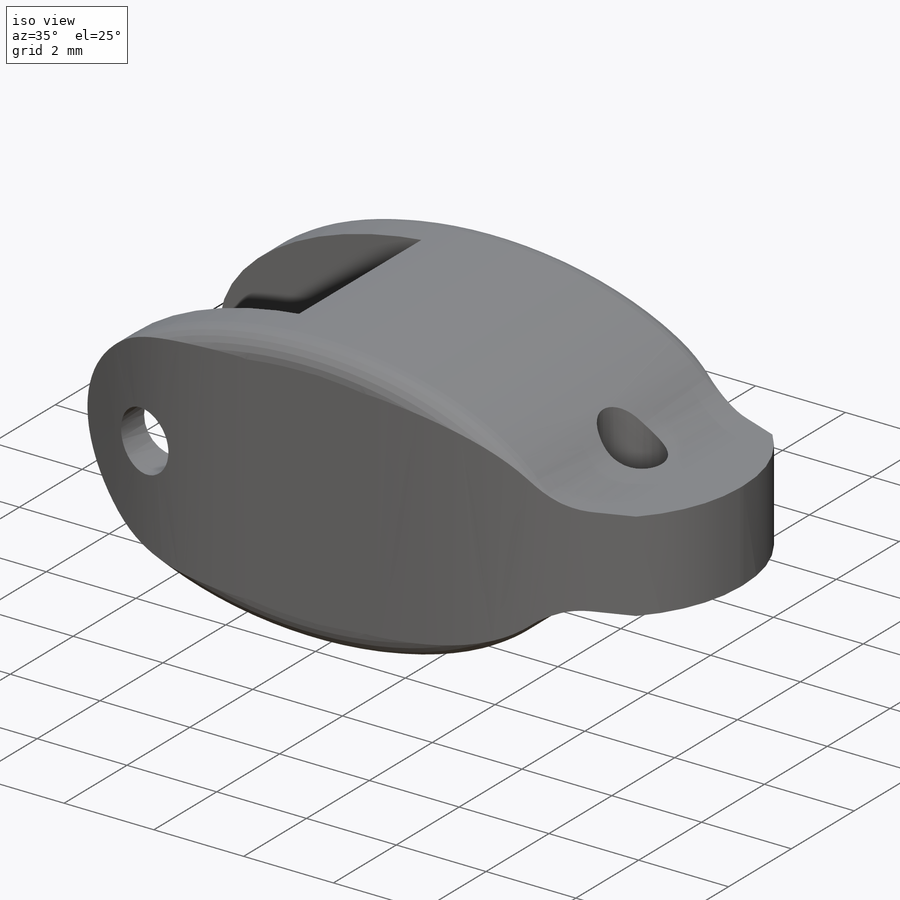
[diagram: iso view]
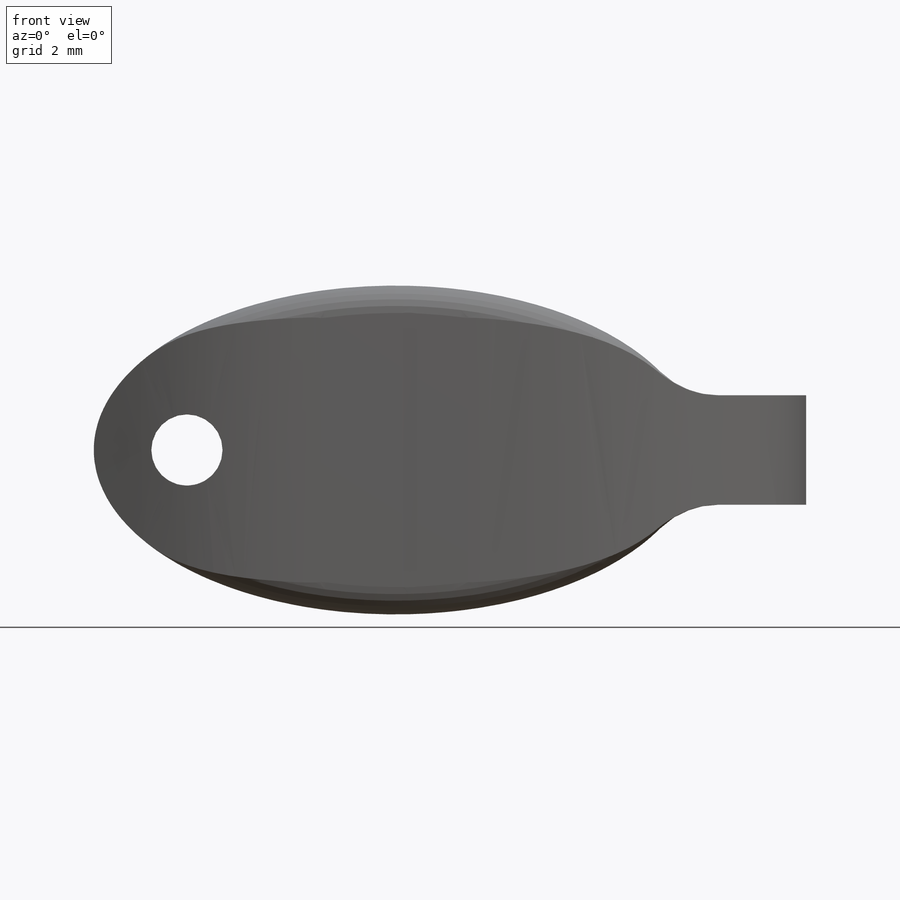
[diagram: front view]
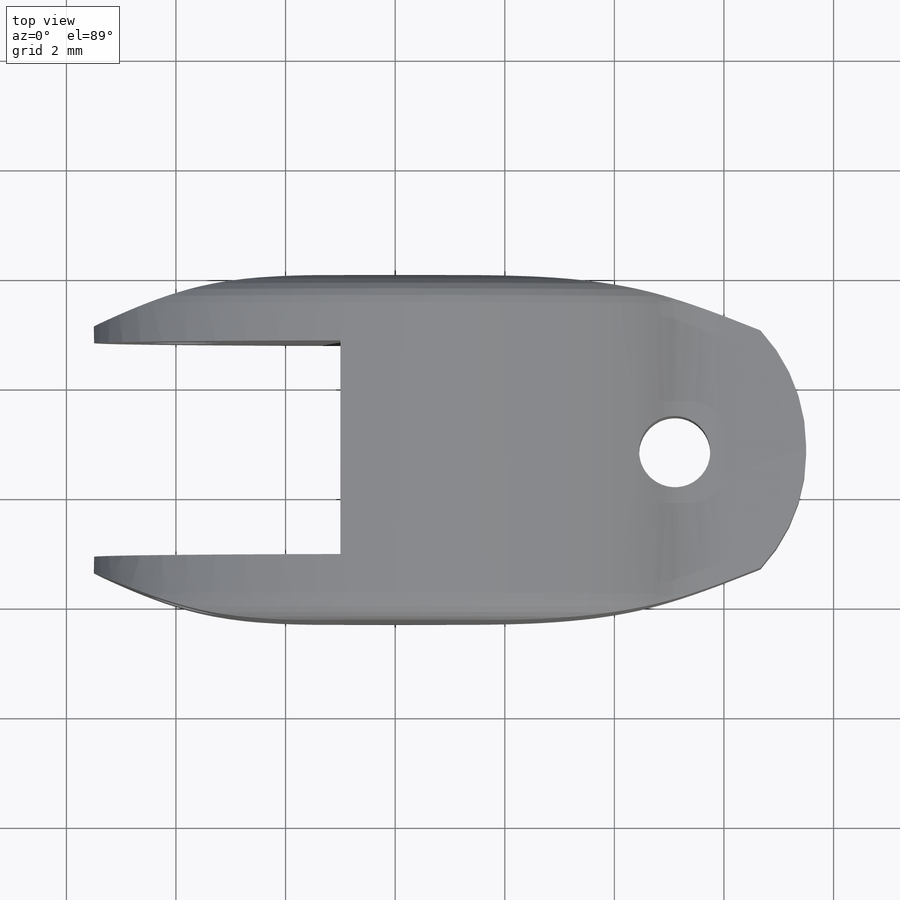
[diagram: top view]
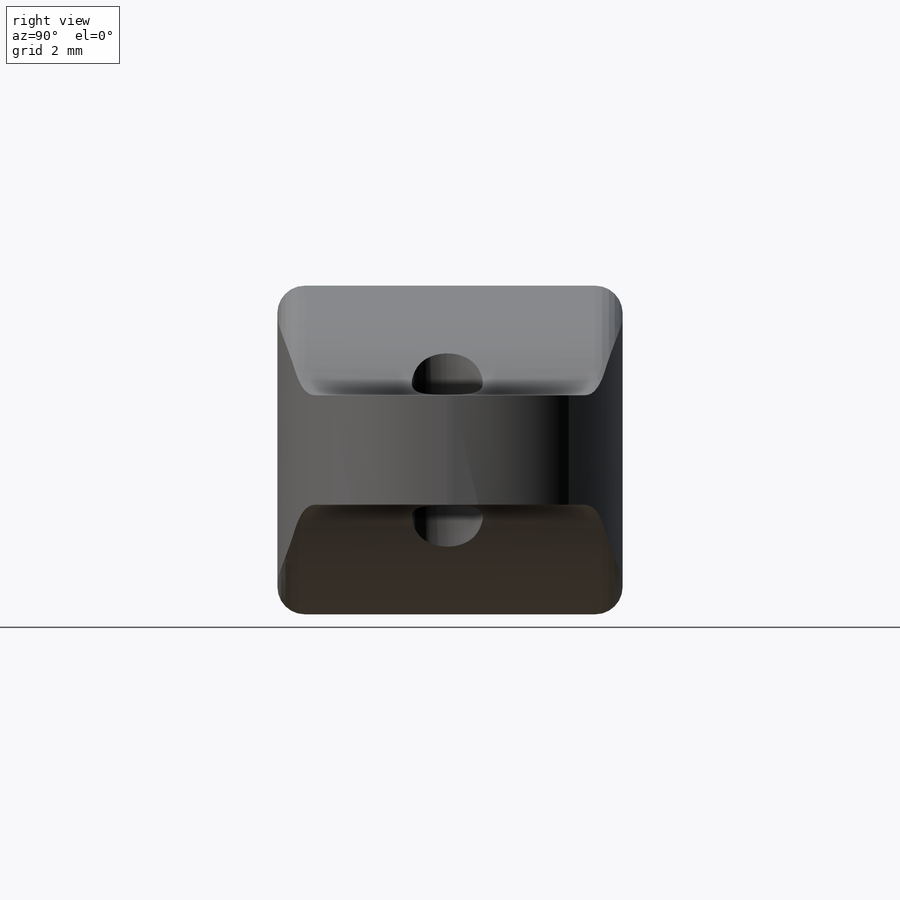
[diagram: right view]
SOLIDWORKS PART (.sldprt)
format: sldprt  version: not decoded by parser v0  size: 354,816 bytes
history: native  units: mm
features: sketch x6, cut_extrude x4, fillet x3, extrude x2, material x1 (+14 scaffold rows collapsed)
feature tree (30):
  scaffold x14  (default folders/planes/origin — collapsed)
  material  "Material <not specified>"
  sketch  "Sketch2"  dims[D1=6.0mm D2=11.0mm]
  extrude  "Extrude1"  Depth=6.3mm
  sketch  "Sketch3"  dims[D1=2.0mm D2=2.0mm]
  extrude  "Extrude2"  Depth=7.5mm
  fillet  "Fillet1"  Radius=3.1mm
  fillet  "Fillet2"  Radius=0.5mm
  fillet  "Fillet3"  Radius=1.5mm
  sketch  "Sketch4"  dims[D1=3.9mm D2=4.5mm D3=5.0mm D4=1.2mm D5=1.2mm]
  cut_extrude  "Extrude3"  [1 undecoded]
  sketch  "Sketch5"  dims[D1=0.3mm]
  cut_extrude  "Extrude4"  [1 undecoded]
  sketch  "Sketch7"  dims[D1=1.3mm D2=10.6mm]
  cut_extrude  "Extrude6"  [1 undecoded]
  sketch  "Sketch8"  dims[D1=~2.279185mm D2=1.7mm]
  cut_extrude  "Extrude7"  [1 undecoded]
decode coverage: 11 of 15 modeling features carry decoded parameters
note: ~ marks probable driven/reference dimensions
note: 4 parameter values undecoded
summary: no parameter record found for 4 features
note: suppression state not decoded; provenance and decode notes live in map.json
